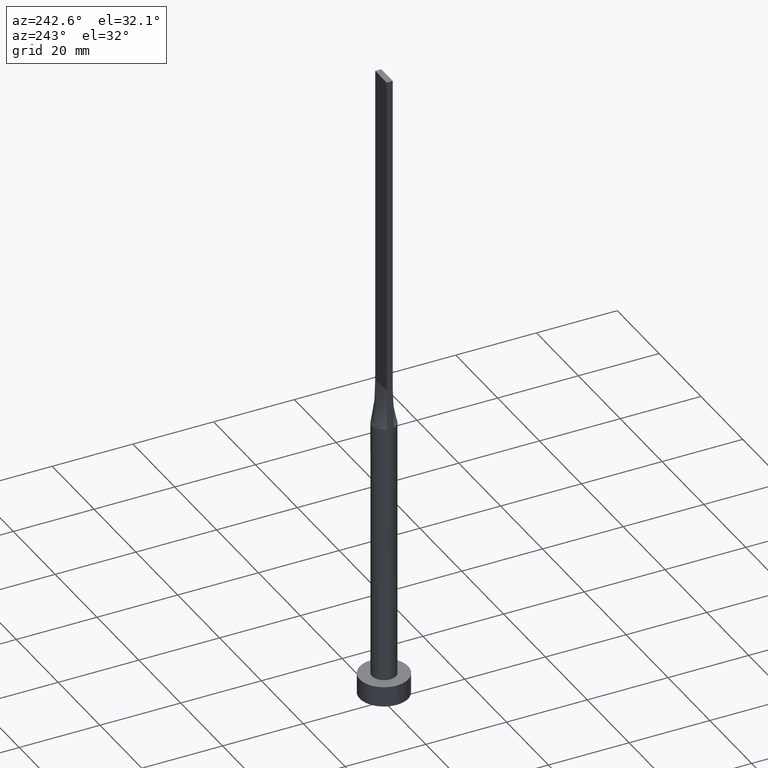
[diagram: clean part render]
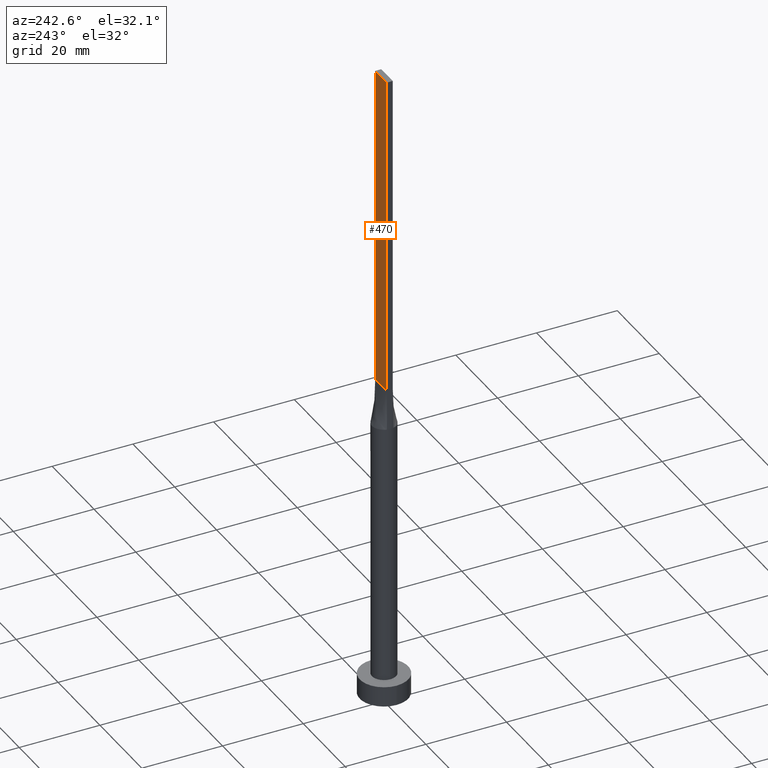
[diagram: same view with one face highlighted and labeled with its STEP entity id]
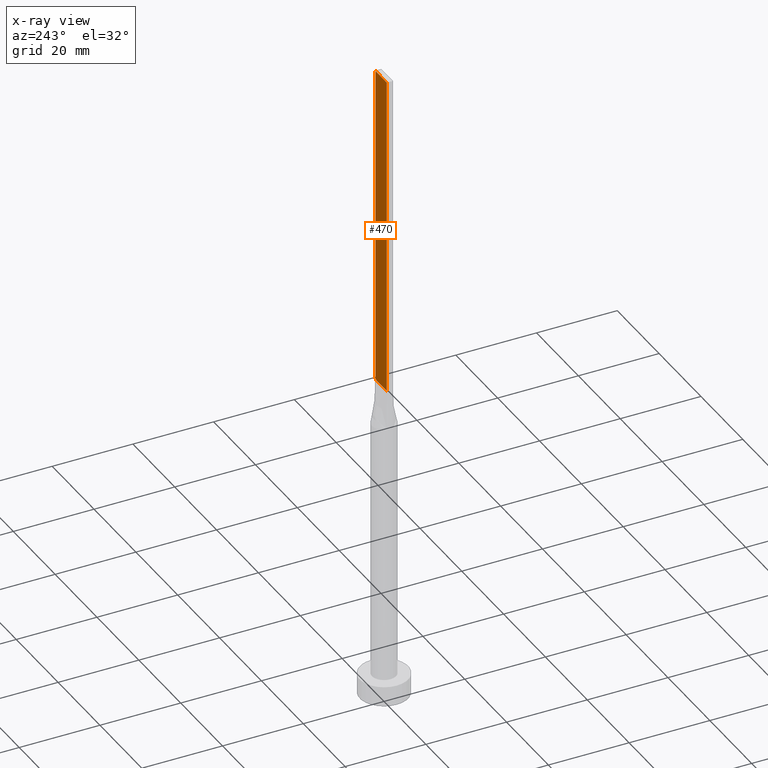
[diagram: x-ray of the same camera — body ghosted, the highlighted face saturated]
A machine part, auxiliary view. The second image highlights one B-rep face of the part: STEP entity #470.
The next image is the same camera in x-ray: the body ghosted, the highlighted face saturated — about 0% of this face is hidden behind the body in this view.
In plain terms, the highlighted planar face has unit normal (0, -1, 0).
Its self-contained STEP definition (entity closure, byte-faithful):
#29 = LINE ( 'NONE', #336, #94 ) ;
#36 = ORIENTED_EDGE ( 'NONE', *, *, #125, .T. ) ;
#43 = CARTESIAN_POINT ( 'NONE',  ( 2.750000000000000000, 0.7500000000000002220, 160.0000000000000000 ) ) ;
#63 = VERTEX_POINT ( 'NONE', #522 ) ;
#65 = DIRECTION ( 'NONE',  ( -1.000000000000000000, -0.000000000000000000, -0.000000000000000000 ) ) ;
#73 = DIRECTION ( 'NONE',  ( -0.000000000000000000, -0.000000000000000000, -1.000000000000000000 ) ) ;
#94 = VECTOR ( 'NONE', #191, 1000.000000000000000 ) ;
#110 = LINE ( 'NONE', #282, #210 ) ;
#125 = EDGE_CURVE ( 'NONE', #63, #341, #331, .T. ) ;
#163 = ORIENTED_EDGE ( 'NONE', *, *, #366, .F. ) ;
#164 = VECTOR ( 'NONE', #65, 1000.000000000000000 ) ;
#171 = VECTOR ( 'NONE', #73, 1000.000000000000000 ) ;
#191 = DIRECTION ( 'NONE',  ( -0.000000000000000000, -0.000000000000000000, -1.000000000000000000 ) ) ;
#210 = VECTOR ( 'NONE', #510, 1000.000000000000000 ) ;
#235 = VERTEX_POINT ( 'NONE', #496 ) ;
#242 = ORIENTED_EDGE ( 'NONE', *, *, #387, .F. ) ;
#244 = PLANE ( 'NONE',  #477 ) ;
#254 = CARTESIAN_POINT ( 'NONE',  ( -2.750000000000000000, 0.7500000000000002220, 80.00000000000000000 ) ) ;
#282 = CARTESIAN_POINT ( 'NONE',  ( 2.750000000000000000, 0.7500000000000002220, 160.0000000000000000 ) ) ;
#299 = EDGE_LOOP ( 'NONE', ( #36, #163, #242, #338 ) ) ;
#331 = LINE ( 'NONE', #523, #164 ) ;
#336 = CARTESIAN_POINT ( 'NONE',  ( 2.750000000000000000, 0.7500000000000002220, 160.0000000000000000 ) ) ;
#338 = ORIENTED_EDGE ( 'NONE', *, *, #375, .T. ) ;
#341 = VERTEX_POINT ( 'NONE', #254 ) ;
#366 = EDGE_CURVE ( 'NONE', #235, #341, #575, .T. ) ;
#375 = EDGE_CURVE ( 'NONE', #486, #63, #29, .T. ) ;
#387 = EDGE_CURVE ( 'NONE', #486, #235, #110, .T. ) ;
#419 = CARTESIAN_POINT ( 'NONE',  ( 2.750000000000000000, 0.7500000000000002220, 160.0000000000000000 ) ) ;
#470 = ADVANCED_FACE ( 'NONE', ( #484 ), #244, .F. ) ;
#471 = DIRECTION ( 'NONE',  ( 0.000000000000000000, -1.000000000000000000, 0.000000000000000000 ) ) ;
#477 = AXIS2_PLACEMENT_3D ( 'NONE', #43, #471, #565 ) ;
#484 = FACE_OUTER_BOUND ( 'NONE', #299, .T. ) ;
#486 = VERTEX_POINT ( 'NONE', #419 ) ;
#496 = CARTESIAN_POINT ( 'NONE',  ( -2.750000000000000000, 0.7500000000000002220, 160.0000000000000000 ) ) ;
#510 = DIRECTION ( 'NONE',  ( -1.000000000000000000, 0.000000000000000000, 0.000000000000000000 ) ) ;
#522 = CARTESIAN_POINT ( 'NONE',  ( 2.750000000000000000, 0.7500000000000002220, 80.00000000000000000 ) ) ;
#523 = CARTESIAN_POINT ( 'NONE',  ( -2.750000000000000000, 0.7500000000000002220, 80.00000000000000000 ) ) ;
#565 = DIRECTION ( 'NONE',  ( 0.000000000000000000, -0.000000000000000000, -1.000000000000000000 ) ) ;
#569 = CARTESIAN_POINT ( 'NONE',  ( -2.750000000000000000, 0.7500000000000002220, 160.0000000000000000 ) ) ;
#575 = LINE ( 'NONE', #569, #171 ) ;